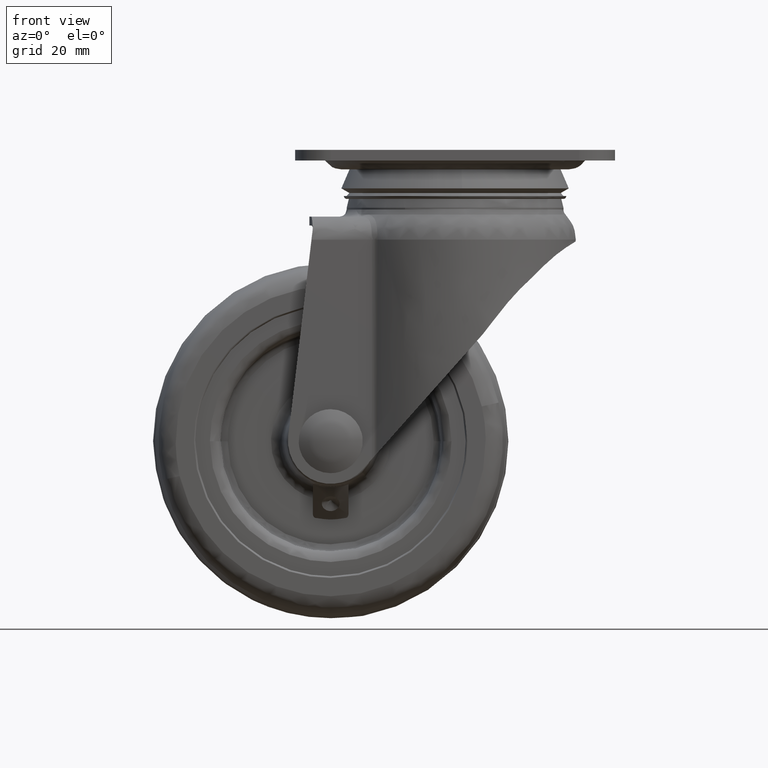
[diagram: clean part render]
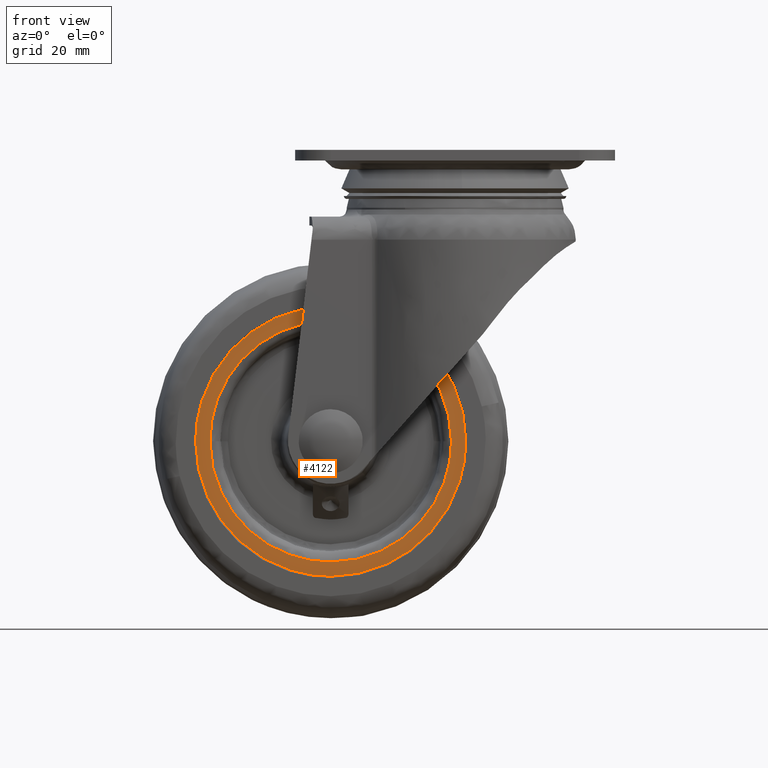
[diagram: same view with one face highlighted and labeled with its STEP entity id]
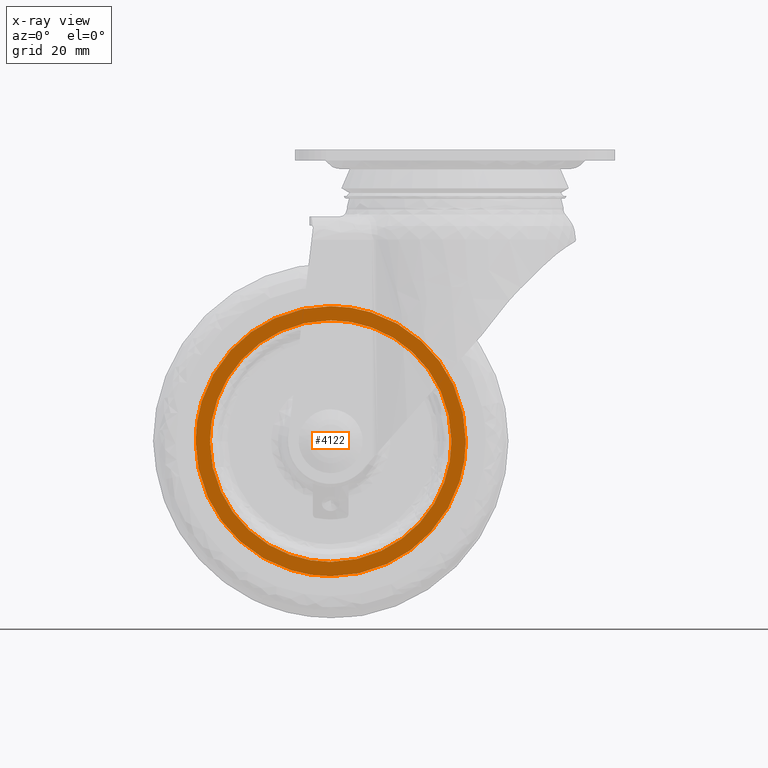
[diagram: x-ray of the same camera — body ghosted, the highlighted face saturated]
A machine part, front view. The second image highlights one B-rep face of the part: STEP entity #4122.
The next image is the same camera in x-ray: the body ghosted, the highlighted face saturated — about 0% of this face is hidden behind the body in this view.
In plain terms, the highlighted face is a freeform B-spline surface patch.
Its self-contained STEP definition (entity closure, byte-faithful):
#3846=CARTESIAN_POINT('',(-73.000015999999945,-15.500000005501560,-82.000014888183614));
#3847=VERTEX_POINT('',#3846);
#3861=CARTESIAN_POINT('',(-35.0,-15.500000000000000,-43.999998888183647));
#3862=VERTEX_POINT('',#3861);
#3863=CARTESIAN_POINT('',(-35.0,-15.500000000000000,-43.999998888183647));
#3864=CARTESIAN_POINT('',(-73.000015999999945,-15.500000002750777,-43.999998888183654));
#3865=CARTESIAN_POINT('',(-73.000015999999945,-15.500000005501560,-82.000014888183614));
#3873=(BOUNDED_CURVE()B_SPLINE_CURVE(2,(#3863,#3864,#3865),.UNSPECIFIED.,.F.,.U.)B_SPLINE_CURVE_WITH_KNOTS((3,3),(0.500000000000000,0.750000000000000),.UNSPECIFIED.)CURVE()GEOMETRIC_REPRESENTATION_ITEM()RATIONAL_B_SPLINE_CURVE((1.0,0.707106781186547,1.0))REPRESENTATION_ITEM(''));
#3874=EDGE_CURVE('',#3862,#3847,#3873,.T.);
#3876=CARTESIAN_POINT('',(3.000015999999945,-15.500000005501560,-82.000014888183614));
#3877=VERTEX_POINT('',#3876);
#3878=CARTESIAN_POINT('',(3.000015999999946,-15.500000005501564,-82.000014888183614));
#3879=CARTESIAN_POINT('',(3.000015999999953,-15.500000002750781,-43.999998888183661));
#3880=CARTESIAN_POINT('',(-35.0,-15.500000000000000,-43.999998888183647));
#3888=(BOUNDED_CURVE()B_SPLINE_CURVE(2,(#3878,#3879,#3880),.UNSPECIFIED.,.F.,.U.)B_SPLINE_CURVE_WITH_KNOTS((3,3),(0.250000000000000,0.500000000000000),.UNSPECIFIED.)CURVE()GEOMETRIC_REPRESENTATION_ITEM()RATIONAL_B_SPLINE_CURVE((1.000000000000000,0.707106781186547,1.0))REPRESENTATION_ITEM(''));
#3889=EDGE_CURVE('',#3877,#3862,#3888,.T.);
#3938=CARTESIAN_POINT('',(-35.0,-15.500000000000000,-120.000030888183600));
#3939=VERTEX_POINT('',#3938);
#3940=CARTESIAN_POINT('',(-35.0,-15.500000000000000,-120.000030888183600));
#3941=CARTESIAN_POINT('',(3.000015999999931,-15.500000002750776,-120.000030888183550));
#3942=CARTESIAN_POINT('',(3.000015999999946,-15.500000005501564,-82.000014888183614));
#3950=(BOUNDED_CURVE()B_SPLINE_CURVE(2,(#3940,#3941,#3942),.UNSPECIFIED.,.F.,.U.)B_SPLINE_CURVE_WITH_KNOTS((3,3),(0.0,0.250000000000000),.UNSPECIFIED.)CURVE()GEOMETRIC_REPRESENTATION_ITEM()RATIONAL_B_SPLINE_CURVE((1.0,0.707106781186548,1.000000000000000))REPRESENTATION_ITEM(''));
#3951=EDGE_CURVE('',#3939,#3877,#3950,.T.);
#3953=CARTESIAN_POINT('',(-73.000015999999945,-15.500000005501560,-82.000014888183614));
#3954=CARTESIAN_POINT('',(-73.000015999999945,-15.500000002750777,-120.000030888183570));
#3955=CARTESIAN_POINT('',(-35.0,-15.500000000000000,-120.000030888183600));
#3963=(BOUNDED_CURVE()B_SPLINE_CURVE(2,(#3953,#3954,#3955),.UNSPECIFIED.,.F.,.U.)B_SPLINE_CURVE_WITH_KNOTS((3,3),(0.750000000000000,1.0),.UNSPECIFIED.)CURVE()GEOMETRIC_REPRESENTATION_ITEM()RATIONAL_B_SPLINE_CURVE((1.0,0.707106781186547,1.0))REPRESENTATION_ITEM(''));
#3964=EDGE_CURVE('',#3847,#3939,#3963,.T.);
#4049=CARTESIAN_POINT('',(-76.796217451097135,-15.500000000000000,-40.203797437086472));
#4050=CARTESIAN_POINT('',(-76.796217451097135,-15.500000000000000,-123.796234377760500));
#4051=CARTESIAN_POINT('',(6.796219489576835,-15.500000000000000,-40.203797437086472));
#4052=CARTESIAN_POINT('',(6.796219489576835,-15.500000000000000,-123.796234377760500));
#4053=B_SPLINE_SURFACE_WITH_KNOTS('',1,1,((#4049,#4051),(#4050,#4052)),.UNSPECIFIED.,.F.,.F.,.U.,(2,2),(2,2),(0.0,83.592436940673991),(0.0,83.592436940673963),.UNSPECIFIED.);
#4054=ORIENTED_EDGE('',*,*,#3951,.T.);
#4055=ORIENTED_EDGE('',*,*,#3889,.T.);
#4056=ORIENTED_EDGE('',*,*,#3874,.T.);
#4057=ORIENTED_EDGE('',*,*,#3964,.T.);
#4058=EDGE_LOOP('',(#4054,#4055,#4056,#4057));
#4059=FACE_OUTER_BOUND('',#4058,.T.);
#4060=CARTESIAN_POINT('',(-35.0,-15.500000000000000,-47.999998888183661));
#4061=VERTEX_POINT('',#4060);
#4062=CARTESIAN_POINT('',(-69.000015194269906,-15.499999999999780,-82.000014888183614));
#4063=VERTEX_POINT('',#4062);
#4064=CARTESIAN_POINT('',(-35.0,-15.500000000000000,-47.999998888183661));
#4065=CARTESIAN_POINT('',(-69.000015597134933,-15.499999999999890,-47.999998888183661));
#4066=CARTESIAN_POINT('',(-69.000015194269906,-15.499999999999780,-82.000014888183614));
#4074=(BOUNDED_CURVE()B_SPLINE_CURVE(2,(#4064,#4065,#4066),.UNSPECIFIED.,.F.,.U.)B_SPLINE_CURVE_WITH_KNOTS((3,3),(0.500000000000000,0.750000000000000),.UNSPECIFIED.)CURVE()GEOMETRIC_REPRESENTATION_ITEM()RATIONAL_B_SPLINE_CURVE((1.0,0.707106781186548,1.0))REPRESENTATION_ITEM(''));
#4075=EDGE_CURVE('',#4061,#4063,#4074,.T.);
#4076=ORIENTED_EDGE('',*,*,#4075,.F.);
#4077=CARTESIAN_POINT('',(-0.999984805730094,-15.499999999999780,-82.000014888183614));
#4078=VERTEX_POINT('',#4077);
#4079=CARTESIAN_POINT('',(-0.999984805730094,-15.499999999999783,-82.000014888183614));
#4080=CARTESIAN_POINT('',(-0.999984402865067,-15.499999999999893,-47.999998888183669));
#4081=CARTESIAN_POINT('',(-35.0,-15.500000000000000,-47.999998888183661));
#4089=(BOUNDED_CURVE()B_SPLINE_CURVE(2,(#4079,#4080,#4081),.UNSPECIFIED.,.F.,.U.)B_SPLINE_CURVE_WITH_KNOTS((3,3),(0.250000000000000,0.500000000000000),.UNSPECIFIED.)CURVE()GEOMETRIC_REPRESENTATION_ITEM()RATIONAL_B_SPLINE_CURVE((1.000000000000000,0.707106781186547,1.0))REPRESENTATION_ITEM(''));
#4090=EDGE_CURVE('',#4078,#4061,#4089,.T.);
#4091=ORIENTED_EDGE('',*,*,#4090,.F.);
#4092=CARTESIAN_POINT('',(-35.0,-15.500000000000000,-116.000030888183600));
#4093=VERTEX_POINT('',#4092);
#4094=CARTESIAN_POINT('',(-35.0,-15.500000000000000,-116.000030888183600));
#4095=CARTESIAN_POINT('',(-0.999984402865089,-15.499999999999888,-116.000030888183570));
#4096=CARTESIAN_POINT('',(-0.999984805730094,-15.499999999999783,-82.000014888183614));
#4104=(BOUNDED_CURVE()B_SPLINE_CURVE(2,(#4094,#4095,#4096),.UNSPECIFIED.,.F.,.U.)B_SPLINE_CURVE_WITH_KNOTS((3,3),(0.0,0.250000000000000),.UNSPECIFIED.)CURVE()GEOMETRIC_REPRESENTATION_ITEM()RATIONAL_B_SPLINE_CURVE((1.0,0.707106781186548,1.000000000000000))REPRESENTATION_ITEM(''));
#4105=EDGE_CURVE('',#4093,#4078,#4104,.T.);
#4106=ORIENTED_EDGE('',*,*,#4105,.F.);
#4107=CARTESIAN_POINT('',(-69.000015194269906,-15.499999999999780,-82.000014888183614));
#4108=CARTESIAN_POINT('',(-69.000015597134933,-15.499999999999890,-116.000030888183570));
#4109=CARTESIAN_POINT('',(-35.0,-15.500000000000000,-116.000030888183600));
#4117=(BOUNDED_CURVE()B_SPLINE_CURVE(2,(#4107,#4108,#4109),.UNSPECIFIED.,.F.,.U.)B_SPLINE_CURVE_WITH_KNOTS((3,3),(0.750000000000000,1.0),.UNSPECIFIED.)CURVE()GEOMETRIC_REPRESENTATION_ITEM()RATIONAL_B_SPLINE_CURVE((1.0,0.707106781186548,1.0))REPRESENTATION_ITEM(''));
#4118=EDGE_CURVE('',#4063,#4093,#4117,.T.);
#4119=ORIENTED_EDGE('',*,*,#4118,.F.);
#4120=EDGE_LOOP('',(#4076,#4091,#4106,#4119));
#4121=FACE_BOUND('',#4120,.T.);
#4122=ADVANCED_FACE('',(#4059,#4121),#4053,.T.);